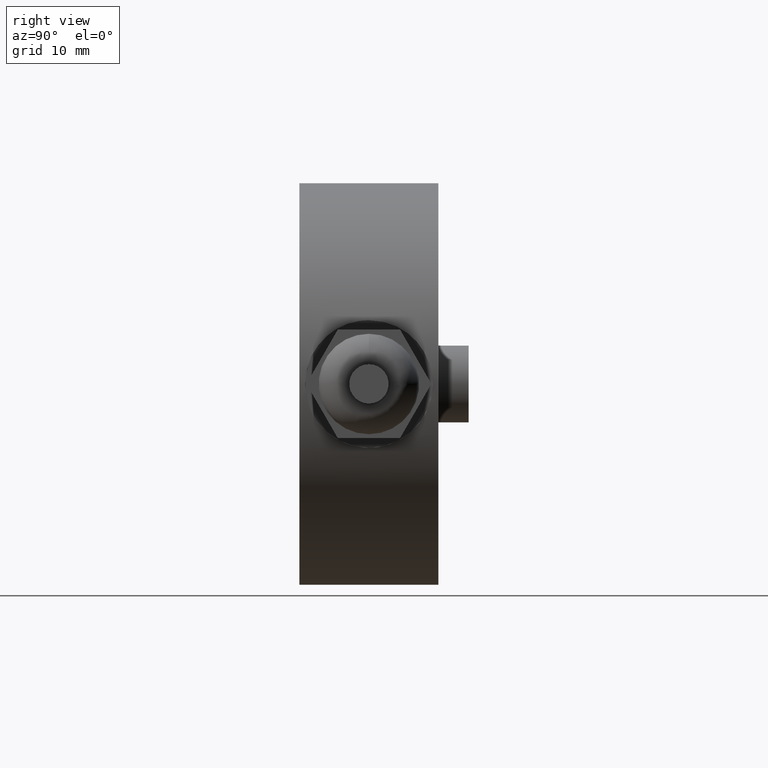
[diagram: clean part render]
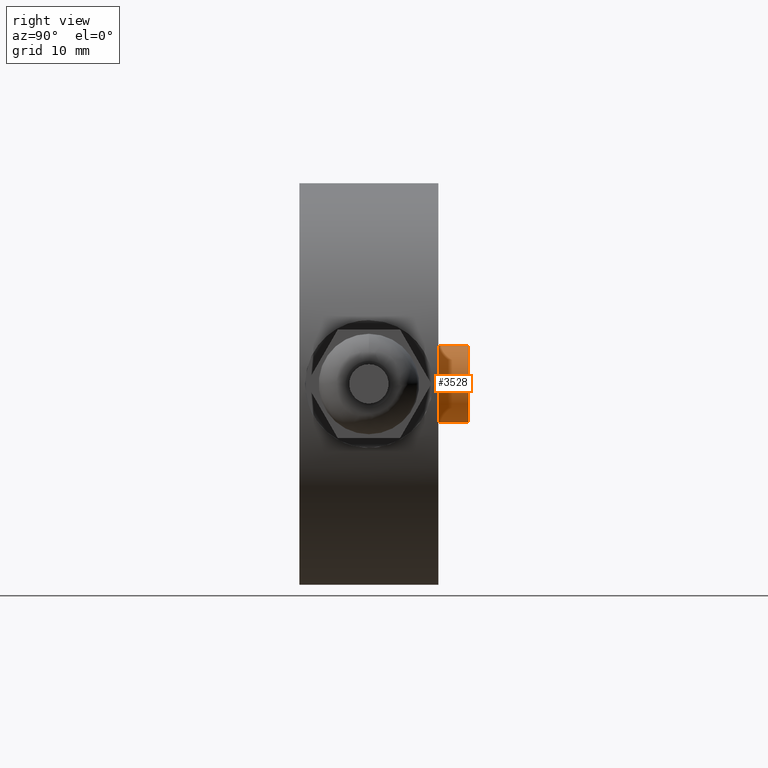
[diagram: same view with one face highlighted and labeled with its STEP entity id]
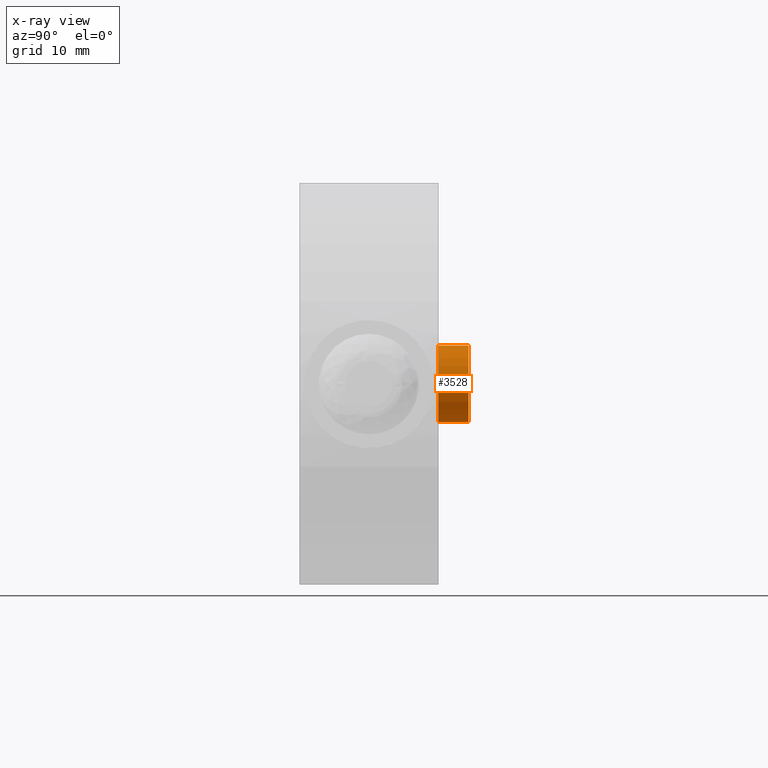
[diagram: x-ray of the same camera — body ghosted, the highlighted face saturated]
A machine part, right view. The second image highlights one B-rep face of the part: STEP entity #3528.
The next image is the same camera in x-ray: the body ghosted, the highlighted face saturated — about 0% of this face is hidden behind the body in this view.
In plain terms, the highlighted cylindrical surface (bore or boss wall) has radius 5 mm, axis along (0, -1, 0).
Its self-contained STEP definition (entity closure, byte-faithful):
#560=FACE_OUTER_BOUND('',#779,.T.);
#779=EDGE_LOOP('',(#3114,#3115,#3116,#3117,#3118,#3119));
#992=LINE('',#14011,#1197);
#1197=VECTOR('',#4493,5.);
#1238=CIRCLE('',#3787,5.);
#1239=CIRCLE('',#3788,5.);
#1240=CIRCLE('',#3790,5.);
#1241=CIRCLE('',#3791,5.);
#1566=VERTEX_POINT('',#14002);
#1567=VERTEX_POINT('',#14003);
#1568=VERTEX_POINT('',#14007);
#1569=VERTEX_POINT('',#14008);
#2089=EDGE_CURVE('',#1566,#1567,#1238,.T.);
#2090=EDGE_CURVE('',#1567,#1566,#1239,.T.);
#2091=EDGE_CURVE('',#1568,#1569,#1240,.T.);
#2092=EDGE_CURVE('',#1569,#1568,#1241,.T.);
#2093=EDGE_CURVE('',#1569,#1567,#992,.T.);
#3114=ORIENTED_EDGE('',*,*,#2091,.F.);
#3115=ORIENTED_EDGE('',*,*,#2092,.F.);
#3116=ORIENTED_EDGE('',*,*,#2093,.T.);
#3117=ORIENTED_EDGE('',*,*,#2090,.T.);
#3118=ORIENTED_EDGE('',*,*,#2089,.T.);
#3119=ORIENTED_EDGE('',*,*,#2093,.F.);
#3317=CYLINDRICAL_SURFACE('',#3789,5.);
#3528=ADVANCED_FACE('',(#560),#3317,.T.);
#3787=AXIS2_PLACEMENT_3D('',#14004,#4483,#4484);
#3788=AXIS2_PLACEMENT_3D('',#14005,#4485,#4486);
#3789=AXIS2_PLACEMENT_3D('',#14006,#4487,#4488);
#3790=AXIS2_PLACEMENT_3D('',#14009,#4489,#4490);
#3791=AXIS2_PLACEMENT_3D('',#14010,#4491,#4492);
#4483=DIRECTION('center_axis',(0.,-1.,0.));
#4484=DIRECTION('ref_axis',(1.,0.,0.));
#4485=DIRECTION('center_axis',(0.,-1.,0.));
#4486=DIRECTION('ref_axis',(1.,0.,0.));
#4487=DIRECTION('center_axis',(0.,-1.,0.));
#4488=DIRECTION('ref_axis',(1.,0.,0.));
#4489=DIRECTION('center_axis',(0.,-1.,0.));
#4490=DIRECTION('ref_axis',(1.,0.,0.));
#4491=DIRECTION('center_axis',(0.,-1.,0.));
#4492=DIRECTION('ref_axis',(1.,0.,0.));
#4493=DIRECTION('',(0.,1.,0.));
#14002=CARTESIAN_POINT('',(5.,21.9166435056495,0.));
#14003=CARTESIAN_POINT('',(-5.,21.9166435056495,-6.12323399573677E-16));
#14004=CARTESIAN_POINT('Origin',(0.,21.9166435056495,0.));
#14005=CARTESIAN_POINT('Origin',(0.,21.9166435056495,0.));
#14006=CARTESIAN_POINT('Origin',(0.,19.9583217528248,0.));
#14007=CARTESIAN_POINT('',(5.,18.,0.));
#14008=CARTESIAN_POINT('',(-5.,18.,-6.12323399573677E-16));
#14009=CARTESIAN_POINT('Origin',(0.,18.,0.));
#14010=CARTESIAN_POINT('Origin',(0.,18.,0.));
#14011=CARTESIAN_POINT('',(-5.,19.9583217528248,-6.12323399573677E-16));